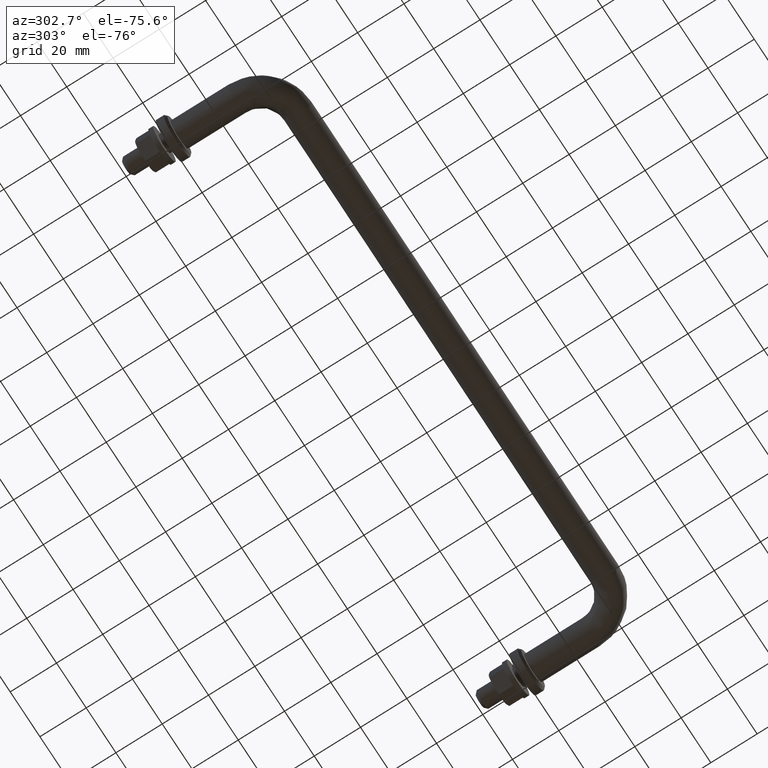
[diagram: clean part render]
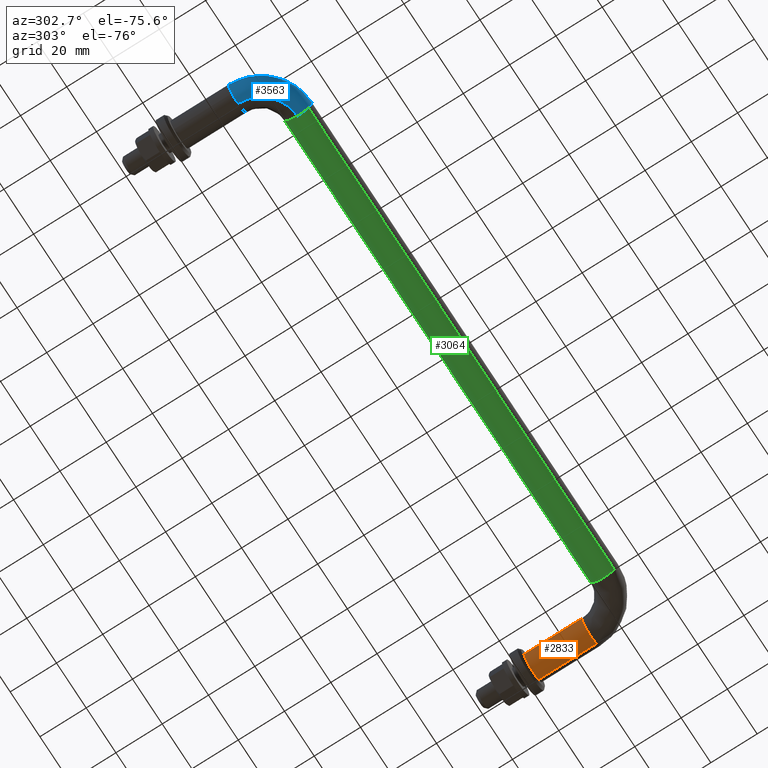
[diagram: same view with three faces highlighted in distinct colors, each labeled with its STEP entity id]
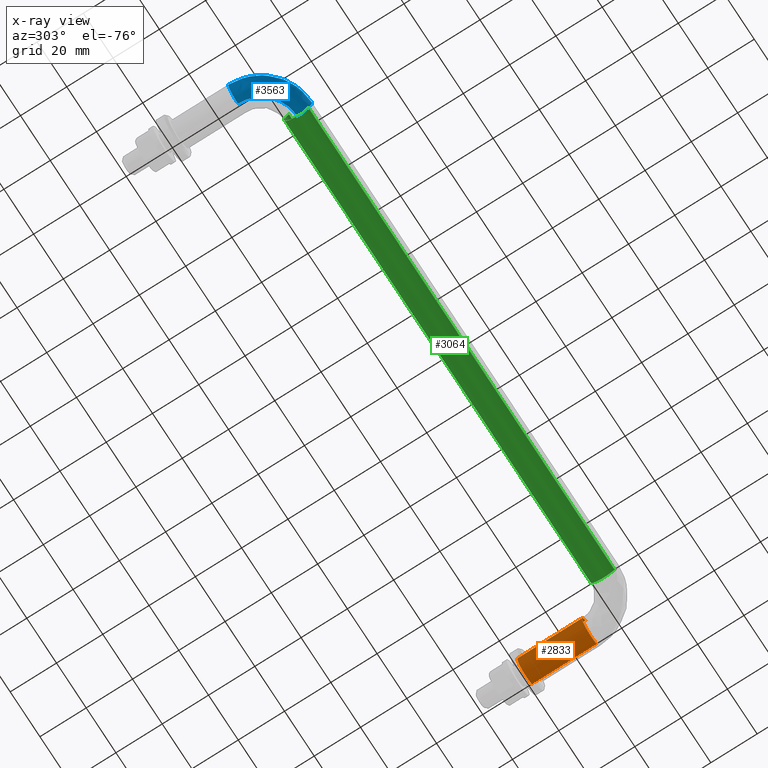
[diagram: x-ray of the same camera — body ghosted, the three highlighted faces saturated]
A machine part, auxiliary view with three faces highlighted in distinct colors.
The next image is the same camera in x-ray (body ghosted, the three faces saturated) — at least one of them is partly hidden behind the body in this view.
Their STEP definitions:

[orange] entity #2833 — the highlighted face is a freeform B-spline surface patch.
#2720=CARTESIAN_POINT('',(241.735087819825710,-28.700000000250508,-4.695648941114484));
#2721=CARTESIAN_POINT('',(237.039438878711280,-28.700000000250519,-8.430736760940201));
#2722=CARTESIAN_POINT('',(233.304351058885490,-28.700000000250508,-3.735087819825715));
#2723=CARTESIAN_POINT('',(229.569263239059810,-28.700000000250519,0.960561121288768));
#2724=CARTESIAN_POINT('',(234.264912180174290,-28.700000000250508,4.695648941114484));
#2725=CARTESIAN_POINT('',(241.735087819825710,0.717500000006293,-4.695648941114484));
#2726=CARTESIAN_POINT('',(237.039438878711280,0.717500000006293,-8.430736760940201));
#2727=CARTESIAN_POINT('',(233.304351058885490,0.717500000006293,-3.735087819825715));
#2728=CARTESIAN_POINT('',(229.569263239059810,0.717500000006293,0.960561121288768));
#2729=CARTESIAN_POINT('',(234.264912180174290,0.717500000006293,4.695648941114484));
#2737=(BOUNDED_SURFACE()B_SPLINE_SURFACE(2,1,((#2720,#2725),(#2721,#2726),(#2722,#2727),(#2723,#2728),(#2724,#2729)),.UNSPECIFIED.,.F.,.F.,.U.)B_SPLINE_SURFACE_WITH_KNOTS((3,2,3),(2,2),(0.0,9.941125496954339,19.882250993908681),(0.0,29.417500000256808),.UNSPECIFIED.)GEOMETRIC_REPRESENTATION_ITEM()RATIONAL_B_SPLINE_SURFACE(((1.0,1.0),(0.707106781186548,0.707106781186548),(1.0,1.0),(0.707106781186548,0.707106781186548),(1.0,1.0)))REPRESENTATION_ITEM('')SURFACE());
#2738=CARTESIAN_POINT('',(237.924603760736890,-28.000000000244398,-5.999526265223361));
#2739=VERTEX_POINT('',#2738);
#2740=CARTESIAN_POINT('',(241.735087819829690,-28.0,-4.695648941111300));
#2741=VERTEX_POINT('',#2740);
#2742=CARTESIAN_POINT('',(237.924603760736910,-28.000000000244405,-5.999526265223361));
#2743=CARTESIAN_POINT('',(237.962300392085720,-27.999999999999993,-6.0));
#2744=CARTESIAN_POINT('',(238.0,-28.0,-6.0));
#2745=CARTESIAN_POINT('',(240.095293800534960,-28.0,-5.999999999999999));
#2746=CARTESIAN_POINT('',(241.735087819829660,-27.999999999999996,-4.695648941111300));
#2754=(BOUNDED_CURVE()B_SPLINE_CURVE(2,(#2742,#2743,#2744,#2745,#2746),.UNSPECIFIED.,.F.,.U.)B_SPLINE_CURVE_WITH_KNOTS((3,2,3),(0.247784295923900,0.250000000000000,0.357863877391703),.UNSPECIFIED.)CURVE()GEOMETRIC_REPRESENTATION_ITEM()RATIONAL_B_SPLINE_CURVE((0.994854295649010,0.997404141204852,1.0,0.873629607028178,0.856305618643988))REPRESENTATION_ITEM(''));
#2755=EDGE_CURVE('',#2739,#2741,#2754,.T.);
#2756=ORIENTED_EDGE('',*,*,#2755,.F.);
#2757=CARTESIAN_POINT('',(232.0,-28.0,0.0));
#2758=VERTEX_POINT('',#2757);
#2759=CARTESIAN_POINT('',(232.0,-28.0,0.0));
#2760=CARTESIAN_POINT('',(232.000000000000030,-28.0,-5.925071579517050));
#2761=CARTESIAN_POINT('',(237.924603760736970,-28.000000000244402,-5.999526265223361));
#2769=(BOUNDED_CURVE()B_SPLINE_CURVE(2,(#2759,#2760,#2761),.UNSPECIFIED.,.F.,.U.)B_SPLINE_CURVE_WITH_KNOTS((3,3),(0.0,0.247784295923900),.UNSPECIFIED.)CURVE()GEOMETRIC_REPRESENTATION_ITEM()RATIONAL_B_SPLINE_CURVE((1.0,0.709702639981696,0.994854295649010))REPRESENTATION_ITEM(''));
#2770=EDGE_CURVE('',#2758,#2739,#2769,.T.);
#2771=ORIENTED_EDGE('',*,*,#2770,.F.);
#2772=CARTESIAN_POINT('',(234.264912180170310,-28.0,4.695648941111294));
#2773=VERTEX_POINT('',#2772);
#2774=CARTESIAN_POINT('',(234.264912180170230,-28.000000000000007,4.695648941111295));
#2775=CARTESIAN_POINT('',(232.0,-27.999999999999993,2.894056444899107));
#2776=CARTESIAN_POINT('',(232.0,-28.0,0.0));
#2784=(BOUNDED_CURVE()B_SPLINE_CURVE(2,(#2774,#2775,#2776),.UNSPECIFIED.,.F.,.U.)B_SPLINE_CURVE_WITH_KNOTS((3,3),(0.857863877391704,1.0),.UNSPECIFIED.)CURVE()GEOMETRIC_REPRESENTATION_ITEM()RATIONAL_B_SPLINE_CURVE((0.856305618643987,0.833477174158371,1.0))REPRESENTATION_ITEM(''));
#2785=EDGE_CURVE('',#2773,#2758,#2784,.T.);
#2786=ORIENTED_EDGE('',*,*,#2785,.F.);
#2787=CARTESIAN_POINT('',(234.264912180169600,2.808864E-014,4.695648941110751));
#2788=VERTEX_POINT('',#2787);
#2789=CARTESIAN_POINT('',(234.264912180170310,-28.0,4.695648941111294));
#2790=CARTESIAN_POINT('',(234.264912180169600,2.808864E-014,4.695648941110751));
#2791=QUASI_UNIFORM_CURVE('',1,(#2789,#2790),.UNSPECIFIED.,.F.,.U.);
#2792=EDGE_CURVE('',#2773,#2788,#2791,.T.);
#2793=ORIENTED_EDGE('',*,*,#2792,.T.);
#2794=CARTESIAN_POINT('',(232.0,2.775558E-014,0.0));
#2795=VERTEX_POINT('',#2794);
#2796=CARTESIAN_POINT('',(234.264912180169630,2.808864E-014,4.695648941110752));
#2797=CARTESIAN_POINT('',(231.999999999999970,2.775558E-014,2.894056444898034));
#2798=CARTESIAN_POINT('',(232.0,2.775558E-014,0.0));
#2806=(BOUNDED_CURVE()B_SPLINE_CURVE(2,(#2796,#2797,#2798),.UNSPECIFIED.,.F.,.U.)B_SPLINE_CURVE_WITH_KNOTS((3,3),(0.857863877391748,1.0),.UNSPECIFIED.)CURVE()GEOMETRIC_REPRESENTATION_ITEM()RATIONAL_B_SPLINE_CURVE((0.856305618643973,0.833477174158422,1.0))REPRESENTATION_ITEM(''));
#2807=EDGE_CURVE('',#2788,#2795,#2806,.T.);
#2808=ORIENTED_EDGE('',*,*,#2807,.T.);
#2809=CARTESIAN_POINT('',(241.735087819830400,2.853273E-014,-4.695648941110748));
#2810=VERTEX_POINT('',#2809);
#2811=CARTESIAN_POINT('',(232.0,2.775558E-014,0.0));
#2812=CARTESIAN_POINT('',(231.999999999999910,2.775558E-014,-6.0));
#2813=CARTESIAN_POINT('',(238.0,2.775558E-014,-6.0));
#2814=CARTESIAN_POINT('',(240.095293800535980,2.775558E-014,-5.999999999999999));
#2815=CARTESIAN_POINT('',(241.735087819830450,2.853273E-014,-4.695648941110748));
#2823=(BOUNDED_CURVE()B_SPLINE_CURVE(2,(#2811,#2812,#2813,#2814,#2815),.UNSPECIFIED.,.F.,.U.)B_SPLINE_CURVE_WITH_KNOTS((3,2,3),(0.0,0.250000000000000,0.357863877391748),.UNSPECIFIED.)CURVE()GEOMETRIC_REPRESENTATION_ITEM()RATIONAL_B_SPLINE_CURVE((1.0,0.707106781186548,1.0,0.873629607028125,0.856305618643973))REPRESENTATION_ITEM(''));
#2824=EDGE_CURVE('',#2795,#2810,#2823,.T.);
#2825=ORIENTED_EDGE('',*,*,#2824,.T.);
#2826=CARTESIAN_POINT('',(241.735087819829690,-28.0,-4.695648941111300));
#2827=CARTESIAN_POINT('',(241.735087819830400,2.853273E-014,-4.695648941110748));
#2828=QUASI_UNIFORM_CURVE('',1,(#2826,#2827),.UNSPECIFIED.,.F.,.U.);
#2829=EDGE_CURVE('',#2741,#2810,#2828,.T.);
#2830=ORIENTED_EDGE('',*,*,#2829,.F.);
#2831=EDGE_LOOP('',(#2756,#2771,#2786,#2793,#2808,#2825,#2830));
#2832=FACE_OUTER_BOUND('',#2831,.T.);
#2833=ADVANCED_FACE('',(#2832),#2737,.T.);

[blue] entity #3563 — the highlighted face is a freeform B-spline surface patch.
#2973=CARTESIAN_POINT('',(16.0,-48.467995306421393,-4.004624569394231));
#2974=VERTEX_POINT('',#2973);
#2980=CARTESIAN_POINT('',(15.999999987035700,-43.581599959342967,-5.985394005909544));
#2981=VERTEX_POINT('',#2980);
#2982=CARTESIAN_POINT('',(15.999999987035705,-43.581599959342974,-5.985394005909544));
#2983=CARTESIAN_POINT('',(15.999999999999998,-43.790544771602143,-6.0));
#2984=CARTESIAN_POINT('',(16.0,-44.0,-6.0));
#2985=CARTESIAN_POINT('',(16.000000000000004,-46.679558452846841,-6.000000000000001));
#2986=CARTESIAN_POINT('',(16.000000000000007,-48.467995306421400,-4.004624569394231));
#2994=(BOUNDED_CURVE()B_SPLINE_CURVE(2,(#2982,#2983,#2984,#2985,#2986),.UNSPECIFIED.,.F.,.U.)B_SPLINE_CURVE_WITH_KNOTS((3,2,3),(0.237833656008206,0.250000000000000,0.383245997385381),.UNSPECIFIED.)CURVE()GEOMETRIC_REPRESENTATION_ITEM()RATIONAL_B_SPLINE_CURVE((0.972879811819991,0.985746241388207,1.0,0.843892603727148,0.854190693179184))REPRESENTATION_ITEM(''));
#2995=EDGE_CURVE('',#2981,#2974,#2994,.T.);
#3129=CARTESIAN_POINT('',(15.999999999095181,-44.075396245465733,5.999526265145413));
#3130=VERTEX_POINT('',#3129);
#3146=CARTESIAN_POINT('',(16.0,-49.999999999999993,0.0));
#3147=VERTEX_POINT('',#3146);
#3148=CARTESIAN_POINT('',(16.0,-49.999999999999993,0.0));
#3149=CARTESIAN_POINT('',(16.000000000000004,-49.999999999999979,5.925071567264703));
#3150=CARTESIAN_POINT('',(15.999999999095184,-44.075396245465733,5.999526265145413));
#3158=(BOUNDED_CURVE()B_SPLINE_CURVE(2,(#3148,#3149,#3150),.UNSPECIFIED.,.F.,.U.)B_SPLINE_CURVE_WITH_KNOTS((3,3),(0.500000000000000,0.747784295560256),.UNSPECIFIED.)CURVE()GEOMETRIC_REPRESENTATION_ITEM()RATIONAL_B_SPLINE_CURVE((1.0,0.709702640407731,0.994854294812044))REPRESENTATION_ITEM(''));
#3159=EDGE_CURVE('',#3147,#3130,#3158,.T.);
#3161=CARTESIAN_POINT('',(16.000000000000004,-48.467995306421386,-4.004624569394231));
#3162=CARTESIAN_POINT('',(16.0,-49.999999999999993,-2.295352855926012));
#3163=CARTESIAN_POINT('',(16.0,-49.999999999999993,0.0));
#3171=(BOUNDED_CURVE()B_SPLINE_CURVE(2,(#3161,#3162,#3163),.UNSPECIFIED.,.F.,.U.)B_SPLINE_CURVE_WITH_KNOTS((3,3),(0.383245997385381,0.500000000000000),.UNSPECIFIED.)CURVE()GEOMETRIC_REPRESENTATION_ITEM()RATIONAL_B_SPLINE_CURVE((0.854190693179184,0.863214177459400,1.0))REPRESENTATION_ITEM(''));
#3172=EDGE_CURVE('',#2974,#3147,#3171,.T.);
#3196=CARTESIAN_POINT('',(-0.075396262307778,-28.000000005107950,5.999526264933758));
#3197=VERTEX_POINT('',#3196);
#3254=CARTESIAN_POINT('',(-3.735087819829720,-28.0,-4.695648941111295));
#3255=VERTEX_POINT('',#3254);
#3261=CARTESIAN_POINT('',(-5.999999999999996,-28.0,0.0));
#3262=VERTEX_POINT('',#3261);
#3263=CARTESIAN_POINT('',(-3.735087819829721,-28.000000000000004,-4.695648941111295));
#3264=CARTESIAN_POINT('',(-5.999999999999997,-28.0,-2.894056444899111));
#3265=CARTESIAN_POINT('',(-5.999999999999996,-28.0,0.0));
#3273=(BOUNDED_CURVE()B_SPLINE_CURVE(2,(#3263,#3264,#3265),.UNSPECIFIED.,.F.,.U.)B_SPLINE_CURVE_WITH_KNOTS((3,3),(0.357863877391704,0.500000000000000),.UNSPECIFIED.)CURVE()GEOMETRIC_REPRESENTATION_ITEM()RATIONAL_B_SPLINE_CURVE((0.856305618643987,0.833477174158370,1.0))REPRESENTATION_ITEM(''));
#3274=EDGE_CURVE('',#3255,#3262,#3273,.T.);
#3276=CARTESIAN_POINT('',(-5.999999999999996,-28.0,0.0));
#3277=CARTESIAN_POINT('',(-5.999999999999996,-28.000000000000004,5.925071533995980));
#3278=CARTESIAN_POINT('',(-0.075396262307778,-28.000000005107950,5.999526264933758));
#3286=(BOUNDED_CURVE()B_SPLINE_CURVE(2,(#3276,#3277,#3278),.UNSPECIFIED.,.F.,.U.)B_SPLINE_CURVE_WITH_KNOTS((3,3),(0.500000000000000,0.747784294572857),.UNSPECIFIED.)CURVE()GEOMETRIC_REPRESENTATION_ITEM()RATIONAL_B_SPLINE_CURVE((1.0,0.709702641564541,0.994854292539434))REPRESENTATION_ITEM(''));
#3287=EDGE_CURVE('',#3262,#3197,#3286,.T.);
#3325=CARTESIAN_POINT('',(0.418400040314895,-28.000000020989962,-5.985394005933461));
#3326=VERTEX_POINT('',#3325);
#3340=CARTESIAN_POINT('',(0.418400040314895,-28.000000020989955,-5.985394005933461));
#3341=CARTESIAN_POINT('',(0.209455228054476,-27.999999999999996,-6.0));
#3342=CARTESIAN_POINT('',(3.428898E-015,-28.0,-6.0));
#3343=CARTESIAN_POINT('',(-2.095293800534977,-28.000000000000004,-6.000000000000001));
#3344=CARTESIAN_POINT('',(-3.735087819829721,-28.0,-4.695648941111294));
#3352=(BOUNDED_CURVE()B_SPLINE_CURVE(2,(#3340,#3341,#3342,#3343,#3344),.UNSPECIFIED.,.F.,.U.)B_SPLINE_CURVE_WITH_KNOTS((3,2,3),(0.237833656027867,0.250000000000000,0.357863877391704),.UNSPECIFIED.)CURVE()GEOMETRIC_REPRESENTATION_ITEM()RATIONAL_B_SPLINE_CURVE((0.972879811861576,0.985746241411242,1.0,0.873629607028177,0.856305618643987))REPRESENTATION_ITEM(''));
#3353=EDGE_CURVE('',#3326,#3255,#3352,.T.);
#3494=CARTESIAN_POINT('',(0.546684288357957,-26.922813450295767,-5.979047714498931));
#3495=CARTESIAN_POINT('',(-0.691926953161306,-44.691927411513660,-5.979047714498930));
#3496=CARTESIAN_POINT('',(17.077186974044938,-43.453315682063007,-5.979047714498933));
#3497=CARTESIAN_POINT('',(0.501269921598736,-26.919647803133088,-5.982230034738672));
#3498=CARTESIAN_POINT('',(-0.740981363665448,-44.740981823364820,-5.982230034738671));
#3499=CARTESIAN_POINT('',(17.080352622454654,-43.498730048735304,-5.982230034738673));
#3500=CARTESIAN_POINT('',(0.285231963537030,-26.904588693037091,-5.997368459328781));
#3501=CARTESIAN_POINT('',(-0.974335155328387,-44.974335621435536,-5.997368459328783));
#3502=CARTESIAN_POINT('',(17.095411738482944,-43.714768006383508,-5.997368459328781));
#3503=CARTESIAN_POINT('',(0.113943897119562,-26.892648912299236,-5.999526265222896));
#3504=CARTESIAN_POINT('',(-1.159352270486051,-45.159352741673686,-5.999526265222896));
#3505=CARTESIAN_POINT('',(17.107351523924276,-43.886056072473103,-5.999526265222895));
#3506=CARTESIAN_POINT('',(-5.871059703111108,-26.475459132552292,-6.074922504523007));
#3507=CARTESIAN_POINT('',(-7.624064748611073,-51.624065397316620,-6.074922504523005));
#3508=CARTESIAN_POINT('',(17.524541468016576,-49.871059661247941,-6.074922504523006));
#3509=CARTESIAN_POINT('',(-5.946273435613747,-26.470216295188671,-0.075396239300112));
#3510=CARTESIAN_POINT('',(-7.705306997992081,-51.705307648928503,-0.075396239300112));
#3511=CARTESIAN_POINT('',(17.529784307445532,-49.946273393606596,-0.075396239300112));
#3512=CARTESIAN_POINT('',(-6.021487168116381,-26.464973457825039,5.924130025922782));
#3513=CARTESIAN_POINT('',(-7.786549247373084,-51.786549900540393,5.924130025922781));
#3514=CARTESIAN_POINT('',(17.535027146874498,-50.021487125965294,5.924130025922783));
#3515=CARTESIAN_POINT('',(0.007550690157824,-26.885232683079728,6.000080987939641));
#3516=CARTESIAN_POINT('',(-1.274273085672659,-45.274273560015963,6.000080987939642));
#3517=CARTESIAN_POINT('',(17.114767756065298,-43.992449279231188,6.000080987939640));
#3518=CARTESIAN_POINT('',(0.051317370610145,-26.888283476863286,6.000632339840688));
#3519=CARTESIAN_POINT('',(-1.226998426517011,-45.226998899562183,6.000632339840689));
#3520=CARTESIAN_POINT('',(17.111716961079939,-43.948682598862639,6.000632339840686));
#3528=(BOUNDED_SURFACE()B_SPLINE_SURFACE(2,2,((#3494,#3497,#3500,#3503,#3506,#3509,#3512,#3515,#3518),(#3495,#3498,#3501,#3504,#3507,#3510,#3513,#3516,#3519),(#3496,#3499,#3502,#3505,#3508,#3511,#3514,#3517,#3520)),.UNSPECIFIED.,.F.,.F.,.U.)B_SPLINE_SURFACE_WITH_KNOTS((3,3),(3,1,2,2,1,3),(0.0,40.091364059811198),(0.0,0.103626331037319,0.501270971691647,10.442396468645930,20.383521965600210,20.487275374698470),.UNSPECIFIED.)GEOMETRIC_REPRESENTATION_ITEM()RATIONAL_B_SPLINE_SURFACE(((0.896240618107108,0.898830858744599,0.911360612797192,0.922164430830710,0.652068722409428,0.922164430830710,0.652068722409428,0.924983362202223,0.927802293573737),(0.588135461960928,0.589835242514434,0.598057579841146,0.605147314876259,0.427903769965834,0.605147314876259,0.427903769965834,0.606997167997090,0.608847021117922),(0.896240629319419,0.898830869989315,0.911360624198660,0.922164442367337,0.652068730567055,0.922164442367337,0.652068730567055,0.924983373774117,0.927802305180896)))REPRESENTATION_ITEM('')SURFACE());
#3529=ORIENTED_EDGE('',*,*,#2995,.T.);
#3530=ORIENTED_EDGE('',*,*,#3172,.T.);
#3531=ORIENTED_EDGE('',*,*,#3159,.T.);
#3532=CARTESIAN_POINT('',(-0.075396262307778,-28.000000005107953,5.999526264933758));
#3533=CARTESIAN_POINT('',(-0.075396229084197,-44.075396237490494,5.999526265222896));
#3534=CARTESIAN_POINT('',(15.999999999095181,-44.075396245465726,5.999526265145413));
#3542=(BOUNDED_CURVE()B_SPLINE_CURVE(2,(#3532,#3533,#3534),.UNSPECIFIED.,.F.,.U.)B_SPLINE_CURVE_WITH_KNOTS((3,3),(-1.744561812646428,-0.255438186802944),.UNSPECIFIED.)CURVE()GEOMETRIC_REPRESENTATION_ITEM()RATIONAL_B_SPLINE_CURVE((0.894678509806906,0.632633241571481,0.894678510000697))REPRESENTATION_ITEM(''));
#3543=EDGE_CURVE('',#3197,#3130,#3542,.T.);
#3544=ORIENTED_EDGE('',*,*,#3543,.F.);
#3545=ORIENTED_EDGE('',*,*,#3287,.F.);
#3546=ORIENTED_EDGE('',*,*,#3274,.F.);
#3547=ORIENTED_EDGE('',*,*,#3353,.F.);
#3548=CARTESIAN_POINT('',(0.418400040314895,-28.000000020989958,-5.985394005933461));
#3549=CARTESIAN_POINT('',(0.418399551432572,-43.581600464618766,-5.985394043042593));
#3550=CARTESIAN_POINT('',(15.999999987035707,-43.581599959342974,-5.985394005909544));
#3558=(BOUNDED_CURVE()B_SPLINE_CURVE(2,(#3548,#3549,#3550),.UNSPECIFIED.,.F.,.U.)B_SPLINE_CURVE_WITH_KNOTS((3,3),(-1.744561810478682,-0.255438188436605),.UNSPECIFIED.)CURVE()GEOMETRIC_REPRESENTATION_ITEM()RATIONAL_B_SPLINE_CURVE((0.874553432437223,0.618402664065844,0.874553432810395))REPRESENTATION_ITEM(''));
#3559=EDGE_CURVE('',#3326,#2981,#3558,.T.);
#3560=ORIENTED_EDGE('',*,*,#3559,.T.);
#3561=EDGE_LOOP('',(#3529,#3530,#3531,#3544,#3545,#3546,#3547,#3560));
#3562=FACE_OUTER_BOUND('',#3561,.T.);
#3563=ADVANCED_FACE('',(#3562),#3528,.T.);

[green] entity #3064 — the highlighted face is a freeform B-spline surface patch.
#2932=CARTESIAN_POINT('',(10.849999986672648,-48.467994806516181,-4.004625127142923));
#2933=CARTESIAN_POINT('',(10.849999986672648,-48.236023575800246,-4.263437430715380));
#2934=CARTESIAN_POINT('',(10.849999986672650,-47.975720289294422,-4.493734324734011));
#2935=CARTESIAN_POINT('',(10.849999986672650,-43.481985964560408,-8.469454614028436));
#2936=CARTESIAN_POINT('',(10.849999986672650,-39.506265675265993,-3.975720289294424));
#2937=CARTESIAN_POINT('',(10.849999986672650,-35.530545385971564,0.518014035439587));
#2938=CARTESIAN_POINT('',(10.849999986672650,-40.024279710705578,4.493734324734011));
#2939=CARTESIAN_POINT('',(227.278750001929780,-48.467994806516145,-4.004625127142923));
#2940=CARTESIAN_POINT('',(227.278750001929780,-48.236023575800196,-4.263437430715380));
#2941=CARTESIAN_POINT('',(227.278750001929810,-47.975720289294387,-4.493734324734011));
#2942=CARTESIAN_POINT('',(227.278750001929780,-43.481985964560380,-8.469454614028436));
#2943=CARTESIAN_POINT('',(227.278750001929810,-39.506265675265958,-3.975720289294424));
#2944=CARTESIAN_POINT('',(227.278750001929780,-35.530545385971536,0.518014035439587));
#2945=CARTESIAN_POINT('',(227.278750001929810,-40.024279710705549,4.493734324734011));
#2953=(BOUNDED_SURFACE()B_SPLINE_SURFACE(2,1,((#2932,#2939),(#2933,#2940),(#2934,#2941),(#2935,#2942),(#2936,#2943),(#2937,#2944),(#2938,#2945)),.UNSPECIFIED.,.F.,.F.,.U.)B_SPLINE_SURFACE_WITH_KNOTS((3,2,2,3),(2,2),(0.0,0.795290039756343,10.736415536710620,20.677541033664909),(0.0,216.428750015257210),.UNSPECIFIED.)GEOMETRIC_REPRESENTATION_ITEM()RATIONAL_B_SPLINE_SURFACE(((0.956886118190660,0.956886118190660),(0.976568542494924,0.976568542494924),(1.0,1.0),(0.707106781186548,0.707106781186548),(1.0,1.0),(0.707106781186548,0.707106781186548),(1.0,1.0)))REPRESENTATION_ITEM('')SURFACE());
#2954=CARTESIAN_POINT('',(222.000000001557710,-43.924603758642313,-5.999526265197038));
#2955=VERTEX_POINT('',#2954);
#2956=CARTESIAN_POINT('',(222.0,-48.467995312664243,-4.004624562428996));
#2957=VERTEX_POINT('',#2956);
#2958=CARTESIAN_POINT('',(222.000000001557710,-43.924603758642306,-5.999526265197038));
#2959=CARTESIAN_POINT('',(222.0,-43.962300389990844,-6.0));
#2960=CARTESIAN_POINT('',(222.0,-44.0,-6.0));
#2961=CARTESIAN_POINT('',(222.000000000000030,-46.679558464065884,-6.0));
#2962=CARTESIAN_POINT('',(221.999999999999970,-48.467995312664243,-4.004624562428996));
#2970=(BOUNDED_CURVE()B_SPLINE_CURVE(2,(#2958,#2959,#2960,#2961,#2962),.UNSPECIFIED.,.F.,.U.)B_SPLINE_CURVE_WITH_KNOTS((3,2,3),(0.247784295801099,0.250000000000000,0.383245997856178),.UNSPECIFIED.)CURVE()GEOMETRIC_REPRESENTATION_ITEM()RATIONAL_B_SPLINE_CURVE((0.994854295366371,0.997404141060982,1.0,0.843892603175575,0.854190693251956))REPRESENTATION_ITEM(''));
#2971=EDGE_CURVE('',#2955,#2957,#2970,.T.);
#2972=ORIENTED_EDGE('',*,*,#2971,.T.);
#2973=CARTESIAN_POINT('',(16.0,-48.467995306421393,-4.004624569394231));
#2974=VERTEX_POINT('',#2973);
#2975=CARTESIAN_POINT('',(16.0,-48.467995306421393,-4.004624569394231));
#2976=CARTESIAN_POINT('',(222.0,-48.467995312664243,-4.004624562428996));
#2977=QUASI_UNIFORM_CURVE('',1,(#2975,#2976),.UNSPECIFIED.,.F.,.U.);
#2978=EDGE_CURVE('',#2974,#2957,#2977,.T.);
#2979=ORIENTED_EDGE('',*,*,#2978,.F.);
#2980=CARTESIAN_POINT('',(15.999999987035700,-43.581599959342967,-5.985394005909544));
#2981=VERTEX_POINT('',#2980);
#2982=CARTESIAN_POINT('',(15.999999987035705,-43.581599959342974,-5.985394005909544));
#2983=CARTESIAN_POINT('',(15.999999999999998,-43.790544771602143,-6.0));
#2984=CARTESIAN_POINT('',(16.0,-44.0,-6.0));
#2985=CARTESIAN_POINT('',(16.000000000000004,-46.679558452846841,-6.000000000000001));
#2986=CARTESIAN_POINT('',(16.000000000000007,-48.467995306421400,-4.004624569394231));
#2994=(BOUNDED_CURVE()B_SPLINE_CURVE(2,(#2982,#2983,#2984,#2985,#2986),.UNSPECIFIED.,.F.,.U.)B_SPLINE_CURVE_WITH_KNOTS((3,2,3),(0.237833656008206,0.250000000000000,0.383245997385381),.UNSPECIFIED.)CURVE()GEOMETRIC_REPRESENTATION_ITEM()RATIONAL_B_SPLINE_CURVE((0.972879811819991,0.985746241388207,1.0,0.843892603727148,0.854190693179184))REPRESENTATION_ITEM(''));
#2995=EDGE_CURVE('',#2981,#2974,#2994,.T.);
#2996=ORIENTED_EDGE('',*,*,#2995,.F.);
#2997=CARTESIAN_POINT('',(16.0,-38.0,0.0));
#2998=VERTEX_POINT('',#2997);
#2999=CARTESIAN_POINT('',(16.0,-38.0,0.0));
#3000=CARTESIAN_POINT('',(16.000000000000004,-38.0,-5.595220088023277));
#3001=CARTESIAN_POINT('',(15.999999987035704,-43.581599959342974,-5.985394005909544));
#3009=(BOUNDED_CURVE()B_SPLINE_CURVE(2,(#2999,#3000,#3001),.UNSPECIFIED.,.F.,.U.)B_SPLINE_CURVE_WITH_KNOTS((3,3),(0.0,0.237833656008206),.UNSPECIFIED.)CURVE()GEOMETRIC_REPRESENTATION_ITEM()RATIONAL_B_SPLINE_CURVE((1.0,0.721360539798340,0.972879811819991))REPRESENTATION_ITEM(''));
#3010=EDGE_CURVE('',#2998,#2981,#3009,.T.);
#3011=ORIENTED_EDGE('',*,*,#3010,.F.);
#3012=CARTESIAN_POINT('',(16.0,-40.024279710704917,4.493734324733435));
#3013=VERTEX_POINT('',#3012);
#3014=CARTESIAN_POINT('',(16.000000000000007,-40.024279710704924,4.493734324733436));
#3015=CARTESIAN_POINT('',(16.000000000000004,-38.0,2.702802922143746));
#3016=CARTESIAN_POINT('',(16.0,-38.0,0.0));
#3024=(BOUNDED_CURVE()B_SPLINE_CURVE(2,(#3014,#3015,#3016),.UNSPECIFIED.,.F.,.U.)B_SPLINE_CURVE_WITH_KNOTS((3,3),(0.865779888059615,1.0),.UNSPECIFIED.)CURVE()GEOMETRIC_REPRESENTATION_ITEM()RATIONAL_B_SPLINE_CURVE((0.854350158224966,0.842751357537115,1.0))REPRESENTATION_ITEM(''));
#3025=EDGE_CURVE('',#3013,#2998,#3024,.T.);
#3026=ORIENTED_EDGE('',*,*,#3025,.F.);
#3027=CARTESIAN_POINT('',(222.0,-40.024279710704903,4.493734324733426));
#3028=VERTEX_POINT('',#3027);
#3029=CARTESIAN_POINT('',(16.0,-40.024279710704917,4.493734324733435));
#3030=CARTESIAN_POINT('',(222.0,-40.024279710704903,4.493734324733426));
#3031=QUASI_UNIFORM_CURVE('',1,(#3029,#3030),.UNSPECIFIED.,.F.,.U.);
#3032=EDGE_CURVE('',#3013,#3028,#3031,.T.);
#3033=ORIENTED_EDGE('',*,*,#3032,.T.);
#3034=CARTESIAN_POINT('',(222.0,-38.0,0.0));
#3035=VERTEX_POINT('',#3034);
#3036=CARTESIAN_POINT('',(222.0,-40.024279710704903,4.493734324733426));
#3037=CARTESIAN_POINT('',(222.0,-37.999999999999993,2.702802922143729));
#3038=CARTESIAN_POINT('',(222.0,-38.0,0.0));
#3046=(BOUNDED_CURVE()B_SPLINE_CURVE(2,(#3036,#3037,#3038),.UNSPECIFIED.,.F.,.U.)B_SPLINE_CURVE_WITH_KNOTS((3,3),(0.865779888059616,1.0),.UNSPECIFIED.)CURVE()GEOMETRIC_REPRESENTATION_ITEM()RATIONAL_B_SPLINE_CURVE((0.854350158224966,0.842751357537116,1.0))REPRESENTATION_ITEM(''));
#3047=EDGE_CURVE('',#3028,#3035,#3046,.T.);
#3048=ORIENTED_EDGE('',*,*,#3047,.T.);
#3049=CARTESIAN_POINT('',(222.0,-38.0,0.0));
#3050=CARTESIAN_POINT('',(221.999999999999940,-37.999999999999993,-5.925071575379492));
#3051=CARTESIAN_POINT('',(222.000000001557710,-43.924603758642306,-5.999526265197038));
#3059=(BOUNDED_CURVE()B_SPLINE_CURVE(2,(#3049,#3050,#3051),.UNSPECIFIED.,.F.,.U.)B_SPLINE_CURVE_WITH_KNOTS((3,3),(0.0,0.247784295801099),.UNSPECIFIED.)CURVE()GEOMETRIC_REPRESENTATION_ITEM()RATIONAL_B_SPLINE_CURVE((1.0,0.709702640125566,0.994854295366371))REPRESENTATION_ITEM(''));
#3060=EDGE_CURVE('',#3035,#2955,#3059,.T.);
#3061=ORIENTED_EDGE('',*,*,#3060,.T.);
#3062=EDGE_LOOP('',(#2972,#2979,#2996,#3011,#3026,#3033,#3048,#3061));
#3063=FACE_OUTER_BOUND('',#3062,.T.);
#3064=ADVANCED_FACE('',(#3063),#2953,.T.);